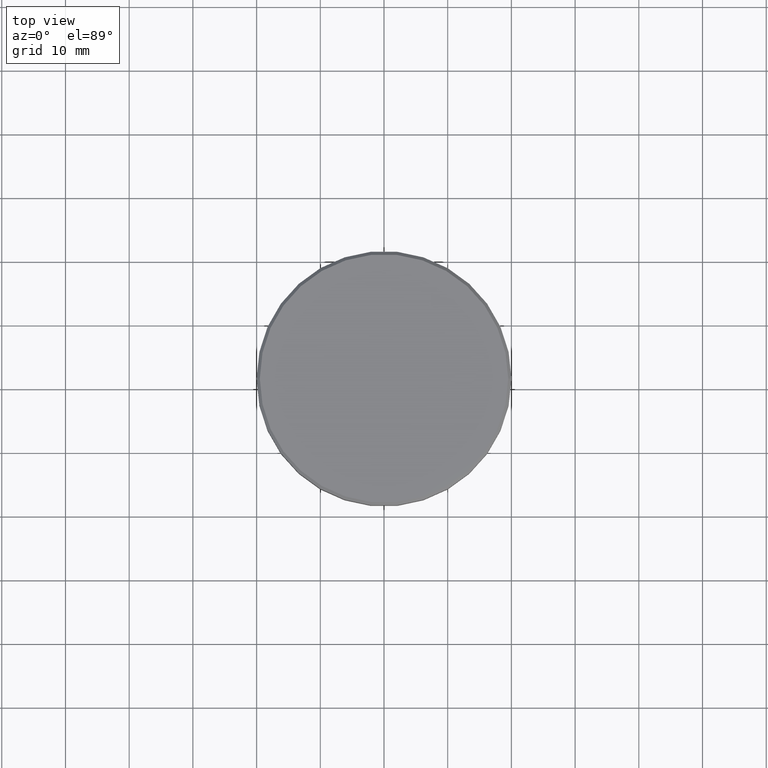
[diagram: clean part render]
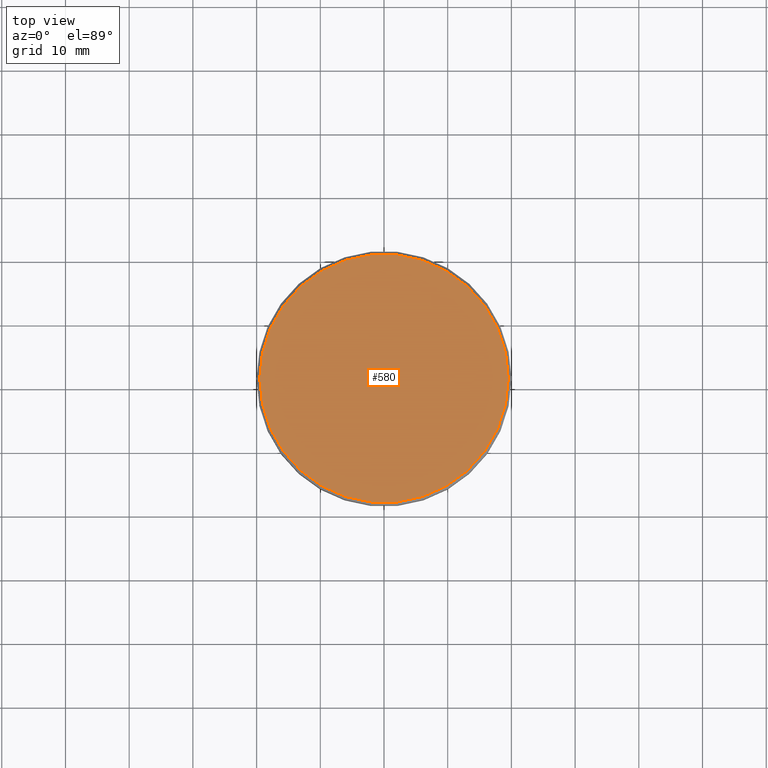
[diagram: same view with one face highlighted and labeled with its STEP entity id]
A machine part, top view. The second image highlights one B-rep face of the part: STEP entity #580.
In plain terms, the highlighted planar face has unit normal (0, -0, 1).
Its self-contained STEP definition (entity closure, byte-faithful):
#78 = CARTESIAN_POINT ( 'NONE',  ( 0.000000000000000000, 0.000000000000000000, 0.000000000000000000 ) ) ;
#129 = PLANE ( 'NONE',  #543 ) ;
#298 = CIRCLE ( 'NONE', #1121, 19.50000000000001776 ) ;
#362 = CARTESIAN_POINT ( 'NONE',  ( 19.50000000000001776, 2.418677428316023515E-15, 0.000000000000000000 ) ) ;
#398 = VERTEX_POINT ( 'NONE', #362 ) ;
#445 = AXIS2_PLACEMENT_3D ( 'NONE', #78, #1178, #898 ) ;
#543 = AXIS2_PLACEMENT_3D ( 'NONE', #936, #588, #837 ) ;
#580 = ADVANCED_FACE ( 'NONE', ( #939 ), #129, .T. ) ;
#588 = DIRECTION ( 'NONE',  ( 0.000000000000000000, -0.000000000000000000, 1.000000000000000000 ) ) ;
#613 = DIRECTION ( 'NONE',  ( 1.000000000000000000, 0.000000000000000000, 0.000000000000000000 ) ) ;
#837 = DIRECTION ( 'NONE',  ( 1.000000000000000000, 0.000000000000000000, 0.000000000000000000 ) ) ;
#871 = CIRCLE ( 'NONE', #445, 19.50000000000001776 ) ;
#891 = VERTEX_POINT ( 'NONE', #1162 ) ;
#896 = DIRECTION ( 'NONE',  ( -0.000000000000000000, -0.000000000000000000, 1.000000000000000000 ) ) ;
#898 = DIRECTION ( 'NONE',  ( 1.000000000000000000, 0.000000000000000000, 0.000000000000000000 ) ) ;
#936 = CARTESIAN_POINT ( 'NONE',  ( 0.000000000000000000, 0.000000000000000000, 0.000000000000000000 ) ) ;
#939 = FACE_OUTER_BOUND ( 'NONE', #1106, .T. ) ;
#970 = CARTESIAN_POINT ( 'NONE',  ( 0.000000000000000000, 0.000000000000000000, 0.000000000000000000 ) ) ;
#992 = EDGE_CURVE ( 'NONE', #891, #398, #871, .T. ) ;
#1016 = ORIENTED_EDGE ( 'NONE', *, *, #1124, .T. ) ;
#1070 = ORIENTED_EDGE ( 'NONE', *, *, #992, .T. ) ;
#1106 = EDGE_LOOP ( 'NONE', ( #1070, #1016 ) ) ;
#1121 = AXIS2_PLACEMENT_3D ( 'NONE', #970, #896, #613 ) ;
#1124 = EDGE_CURVE ( 'NONE', #398, #891, #298, .T. ) ;
#1162 = CARTESIAN_POINT ( 'NONE',  ( -19.50000000000001776, 0.000000000000000000, 0.000000000000000000 ) ) ;
#1178 = DIRECTION ( 'NONE',  ( -0.000000000000000000, -0.000000000000000000, 1.000000000000000000 ) ) ;